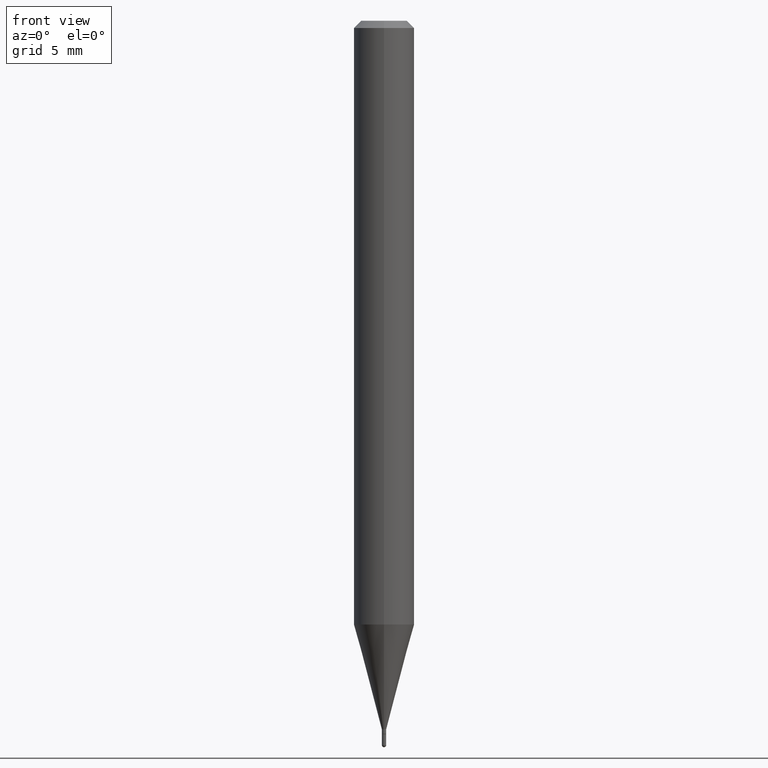
[diagram: clean part render]
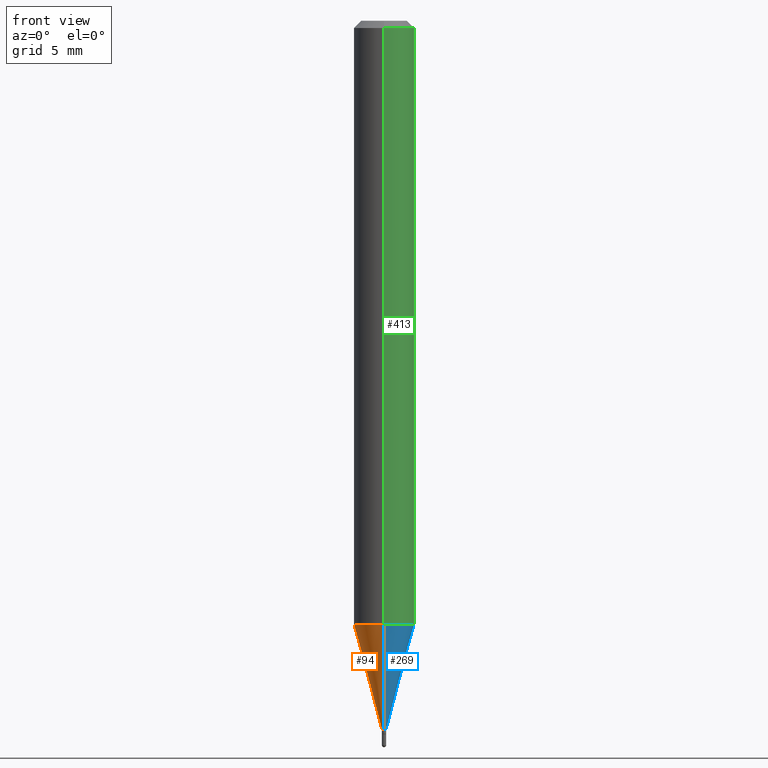
[diagram: same view with three faces highlighted in distinct colors, each labeled with its STEP entity id]
A machine part, front view with three faces highlighted in distinct colors.
Their STEP definitions:

[orange] entity #94 — the highlighted conical surface has half-angle 15 deg.
#5 = DIRECTION ( 'NONE',  ( -6.982962677686265133E-15, -1.000000000000000000, 0.000000000000000000 ) ) ;
#23 = DIRECTION ( 'NONE',  ( -1.807323732225331323E-15, -0.2588190451025183525, 0.9659258262890689783 ) ) ;
#43 = EDGE_LOOP ( 'NONE', ( #395, #272, #202, #156 ) ) ;
#68 = CARTESIAN_POINT ( 'NONE',  ( 3.197442310923973968E-17, 0.004499999999994816306, -1.463000000000000300 ) ) ;
#75 = EDGE_CURVE ( 'NONE', #76, #404, #128, .T. ) ;
#76 = VERTEX_POINT ( 'NONE', #452 ) ;
#90 = CARTESIAN_POINT ( 'NONE',  ( 3.577705239107260742E-29, -5.108059573673968695E-15, -1.463000000000000300 ) ) ;
#94 = ADVANCED_FACE ( 'NONE', ( #366 ), #342, .T. ) ;
#105 = EDGE_CURVE ( 'NONE', #174, #76, #290, .T. ) ;
#107 = DIRECTION ( 'NONE',  ( -6.982962677686265133E-15, -1.000000000000000000, 0.000000000000000000 ) ) ;
#110 = AXIS2_PLACEMENT_3D ( 'NONE', #293, #459, #107 ) ;
#121 = VECTOR ( 'NONE', #23, 39.37007874015748854 ) ;
#128 = CIRCLE ( 'NONE', #325, 0.06250000000000000000 ) ;
#134 = CARTESIAN_POINT ( 'NONE',  ( -3.142333204955188597E-17, -0.004500000000005031225, -1.463000000000000300 ) ) ;
#149 = VECTOR ( 'NONE', #335, 39.37007874015748854 ) ;
#156 = ORIENTED_EDGE ( 'NONE', *, *, #75, .F. ) ;
#174 = VERTEX_POINT ( 'NONE', #377 ) ;
#202 = ORIENTED_EDGE ( 'NONE', *, *, #458, .T. ) ;
#215 = CARTESIAN_POINT ( 'NONE',  ( 3.048363948500623779E-29, -4.352293889662820789E-15, -1.246541053161005941 ) ) ;
#244 = VERTEX_POINT ( 'NONE', #450 ) ;
#261 = DIRECTION ( 'NONE',  ( -6.982962677686265922E-15, -1.000000000000000000, 4.370956789862821150E-15 ) ) ;
#272 = ORIENTED_EDGE ( 'NONE', *, *, #374, .T. ) ;
#274 = DIRECTION ( 'NONE',  ( -2.445458126525809980E-29, 3.491496632723149670E-15, 1.000000000000000000 ) ) ;
#290 = LINE ( 'NONE', #68, #149 ) ;
#293 = CARTESIAN_POINT ( 'NONE',  ( 3.577705239107260742E-29, -5.108059573673968695E-15, -1.463000000000000300 ) ) ;
#314 = CIRCLE ( 'NONE', #364, 0.004499999999999924200 ) ;
#320 = CARTESIAN_POINT ( 'NONE',  ( -4.364351673553611010E-16, -0.06250000000000435763, -1.246541053161005719 ) ) ;
#325 = AXIS2_PLACEMENT_3D ( 'NONE', #215, #495, #261 ) ;
#335 = DIRECTION ( 'NONE',  ( 1.839019923739601499E-15, 0.2588190451025251249, 0.9659258262890670910 ) ) ;
#342 = CONICAL_SURFACE ( 'NONE', #110, 0.004499999999999924200, 0.2617993877991504625 ) ;
#352 = LINE ( 'NONE', #134, #121 ) ;
#364 = AXIS2_PLACEMENT_3D ( 'NONE', #90, #274, #5 ) ;
#366 = FACE_OUTER_BOUND ( 'NONE', #43, .T. ) ;
#374 = EDGE_CURVE ( 'NONE', #174, #244, #314, .T. ) ;
#377 = CARTESIAN_POINT ( 'NONE',  ( 2.380318164796665607E-16, 0.004499999999994816306, -1.463000000000000300 ) ) ;
#395 = ORIENTED_EDGE ( 'NONE', *, *, #105, .F. ) ;
#404 = VERTEX_POINT ( 'NONE', #320 ) ;
#450 = CARTESIAN_POINT ( 'NONE',  ( -3.142333204955188597E-17, -0.004500000000005031225, -1.463000000000000300 ) ) ;
#452 = CARTESIAN_POINT ( 'NONE',  ( 4.440892098500930859E-16, 0.06249999999999565625, -1.246541053161006163 ) ) ;
#458 = EDGE_CURVE ( 'NONE', #244, #404, #352, .T. ) ;
#459 = DIRECTION ( 'NONE',  ( -2.445458126525809980E-29, 3.491496632723149670E-15, 1.000000000000000000 ) ) ;
#495 = DIRECTION ( 'NONE',  ( -2.445458126525809980E-29, 3.491496632723149670E-15, 1.000000000000000000 ) ) ;

[blue] entity #269 — the highlighted conical surface has half-angle 15 deg.
#1 = AXIS2_PLACEMENT_3D ( 'NONE', #334, #138, #297 ) ;
#15 = AXIS2_PLACEMENT_3D ( 'NONE', #187, #103, #66 ) ;
#21 = FACE_OUTER_BOUND ( 'NONE', #388, .T. ) ;
#23 = DIRECTION ( 'NONE',  ( -1.807323732225331323E-15, -0.2588190451025183525, 0.9659258262890689783 ) ) ;
#47 = CARTESIAN_POINT ( 'NONE',  ( 3.577705239107260742E-29, -5.108059573673968695E-15, -1.463000000000000300 ) ) ;
#59 = CIRCLE ( 'NONE', #180, 0.004499999999999924200 ) ;
#66 = DIRECTION ( 'NONE',  ( -6.982962677686265922E-15, -1.000000000000000000, 4.370956789862821150E-15 ) ) ;
#68 = CARTESIAN_POINT ( 'NONE',  ( 3.197442310923973968E-17, 0.004499999999994816306, -1.463000000000000300 ) ) ;
#76 = VERTEX_POINT ( 'NONE', #452 ) ;
#103 = DIRECTION ( 'NONE',  ( -2.445458126525809980E-29, 3.491496632723149670E-15, 1.000000000000000000 ) ) ;
#105 = EDGE_CURVE ( 'NONE', #174, #76, #290, .T. ) ;
#121 = VECTOR ( 'NONE', #23, 39.37007874015748854 ) ;
#124 = ORIENTED_EDGE ( 'NONE', *, *, #458, .F. ) ;
#134 = CARTESIAN_POINT ( 'NONE',  ( -3.142333204955188597E-17, -0.004500000000005031225, -1.463000000000000300 ) ) ;
#138 = DIRECTION ( 'NONE',  ( -2.445458126525809980E-29, 3.491496632723149670E-15, 1.000000000000000000 ) ) ;
#149 = VECTOR ( 'NONE', #335, 39.37007874015748854 ) ;
#168 = ORIENTED_EDGE ( 'NONE', *, *, #105, .T. ) ;
#174 = VERTEX_POINT ( 'NONE', #377 ) ;
#180 = AXIS2_PLACEMENT_3D ( 'NONE', #47, #241, #355 ) ;
#187 = CARTESIAN_POINT ( 'NONE',  ( 3.048363948500623779E-29, -4.352293889662820789E-15, -1.246541053161005941 ) ) ;
#233 = ORIENTED_EDGE ( 'NONE', *, *, #276, .F. ) ;
#241 = DIRECTION ( 'NONE',  ( -2.445458126525809980E-29, 3.491496632723149670E-15, 1.000000000000000000 ) ) ;
#244 = VERTEX_POINT ( 'NONE', #450 ) ;
#269 = ADVANCED_FACE ( 'NONE', ( #21 ), #475, .T. ) ;
#276 = EDGE_CURVE ( 'NONE', #404, #76, #508, .T. ) ;
#279 = ORIENTED_EDGE ( 'NONE', *, *, #379, .T. ) ;
#290 = LINE ( 'NONE', #68, #149 ) ;
#297 = DIRECTION ( 'NONE',  ( -6.982962677686265133E-15, -1.000000000000000000, 0.000000000000000000 ) ) ;
#320 = CARTESIAN_POINT ( 'NONE',  ( -4.364351673553611010E-16, -0.06250000000000435763, -1.246541053161005719 ) ) ;
#334 = CARTESIAN_POINT ( 'NONE',  ( 3.577705239107260742E-29, -5.108059573673968695E-15, -1.463000000000000300 ) ) ;
#335 = DIRECTION ( 'NONE',  ( 1.839019923739601499E-15, 0.2588190451025251249, 0.9659258262890670910 ) ) ;
#352 = LINE ( 'NONE', #134, #121 ) ;
#355 = DIRECTION ( 'NONE',  ( -6.982962677686265133E-15, -1.000000000000000000, 0.000000000000000000 ) ) ;
#377 = CARTESIAN_POINT ( 'NONE',  ( 2.380318164796665607E-16, 0.004499999999994816306, -1.463000000000000300 ) ) ;
#379 = EDGE_CURVE ( 'NONE', #244, #174, #59, .T. ) ;
#388 = EDGE_LOOP ( 'NONE', ( #279, #168, #233, #124 ) ) ;
#404 = VERTEX_POINT ( 'NONE', #320 ) ;
#450 = CARTESIAN_POINT ( 'NONE',  ( -3.142333204955188597E-17, -0.004500000000005031225, -1.463000000000000300 ) ) ;
#452 = CARTESIAN_POINT ( 'NONE',  ( 4.440892098500930859E-16, 0.06249999999999565625, -1.246541053161006163 ) ) ;
#458 = EDGE_CURVE ( 'NONE', #244, #404, #352, .T. ) ;
#475 = CONICAL_SURFACE ( 'NONE', #1, 0.004499999999999924200, 0.2617993877991504625 ) ;
#508 = CIRCLE ( 'NONE', #15, 0.06250000000000000000 ) ;

[green] entity #413 — the highlighted cylindrical surface (edge-blend (fillet) strip) has radius 1.5875 mm, axis along (-0, 0, 1).
#15 = AXIS2_PLACEMENT_3D ( 'NONE', #187, #103, #66 ) ;
#38 = CARTESIAN_POINT ( 'NONE',  ( 4.440892098500625669E-16, 0.06250000000000000000, -2.182185395451968544E-16 ) ) ;
#61 = CARTESIAN_POINT ( 'NONE',  ( -4.364351673553916201E-16, -0.06250000000000000000, 2.182185395451968544E-16 ) ) ;
#66 = DIRECTION ( 'NONE',  ( -6.982962677686265922E-15, -1.000000000000000000, 4.370956789862821150E-15 ) ) ;
#76 = VERTEX_POINT ( 'NONE', #452 ) ;
#103 = DIRECTION ( 'NONE',  ( -2.445458126525809980E-29, 3.491496632723149670E-15, 1.000000000000000000 ) ) ;
#125 = CARTESIAN_POINT ( 'NONE',  ( 0.000000000000000000, 0.000000000000000000, 0.000000000000000000 ) ) ;
#130 = DIRECTION ( 'NONE',  ( -2.445458126525809980E-29, 3.491496632723149670E-15, 1.000000000000000000 ) ) ;
#137 = DIRECTION ( 'NONE',  ( -2.445458126525809980E-29, 3.491496632723149670E-15, 1.000000000000000000 ) ) ;
#146 = CARTESIAN_POINT ( 'NONE',  ( -4.364351673553912750E-16, -0.06250000000000005551, -0.01499999999999979128 ) ) ;
#163 = DIRECTION ( 'NONE',  ( -6.982962677686265922E-15, -1.000000000000000000, 3.491496632723149670E-15 ) ) ;
#187 = CARTESIAN_POINT ( 'NONE',  ( 3.048363948500623779E-29, -4.352293889662820789E-15, -1.246541053161005941 ) ) ;
#188 = LINE ( 'NONE', #38, #474 ) ;
#192 = VERTEX_POINT ( 'NONE', #146 ) ;
#201 = EDGE_CURVE ( 'NONE', #76, #362, #188, .T. ) ;
#240 = ORIENTED_EDGE ( 'NONE', *, *, #468, .F. ) ;
#276 = EDGE_CURVE ( 'NONE', #404, #76, #508, .T. ) ;
#277 = ORIENTED_EDGE ( 'NONE', *, *, #282, .F. ) ;
#282 = EDGE_CURVE ( 'NONE', #192, #362, #346, .T. ) ;
#303 = AXIS2_PLACEMENT_3D ( 'NONE', #125, #442, #163 ) ;
#320 = CARTESIAN_POINT ( 'NONE',  ( -4.364351673553611010E-16, -0.06250000000000435763, -1.246541053161005719 ) ) ;
#336 = CARTESIAN_POINT ( 'NONE',  ( 3.668187189788717229E-31, -5.237244949084727833E-17, -0.01500000000000000812 ) ) ;
#346 = CIRCLE ( 'NONE', #425, 0.06250000000000000000 ) ;
#347 = ORIENTED_EDGE ( 'NONE', *, *, #276, .T. ) ;
#350 = FACE_OUTER_BOUND ( 'NONE', #354, .T. ) ;
#354 = EDGE_LOOP ( 'NONE', ( #347, #360, #277, #240 ) ) ;
#360 = ORIENTED_EDGE ( 'NONE', *, *, #201, .T. ) ;
#362 = VERTEX_POINT ( 'NONE', #472 ) ;
#363 = LINE ( 'NONE', #61, #407 ) ;
#373 = DIRECTION ( 'NONE',  ( -6.982962677686265922E-15, -1.000000000000000000, 3.483106191921935554E-15 ) ) ;
#404 = VERTEX_POINT ( 'NONE', #320 ) ;
#407 = VECTOR ( 'NONE', #137, 39.37007874015748143 ) ;
#413 = ADVANCED_FACE ( 'NONE', ( #350 ), #482, .T. ) ;
#425 = AXIS2_PLACEMENT_3D ( 'NONE', #336, #130, #373 ) ;
#442 = DIRECTION ( 'NONE',  ( -2.445458126525809980E-29, 3.491496632723149670E-15, 1.000000000000000000 ) ) ;
#452 = CARTESIAN_POINT ( 'NONE',  ( 4.440892098500930859E-16, 0.06249999999999565625, -1.246541053161006163 ) ) ;
#468 = EDGE_CURVE ( 'NONE', #404, #192, #363, .T. ) ;
#472 = CARTESIAN_POINT ( 'NONE',  ( 4.440892098500932831E-16, 0.06249999999999995143, -0.01500000000000022669 ) ) ;
#474 = VECTOR ( 'NONE', #491, 39.37007874015748143 ) ;
#482 = CYLINDRICAL_SURFACE ( 'NONE', #303, 0.06250000000000000000 ) ;
#491 = DIRECTION ( 'NONE',  ( -2.445458126525809980E-29, 3.491496632723149670E-15, 1.000000000000000000 ) ) ;
#508 = CIRCLE ( 'NONE', #15, 0.06250000000000000000 ) ;